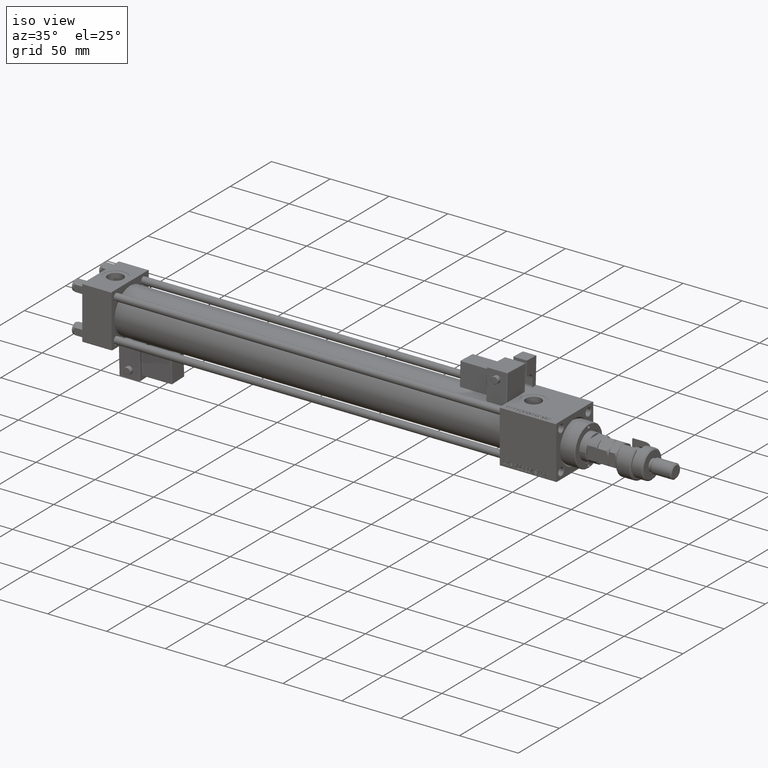
[diagram: clean part render]
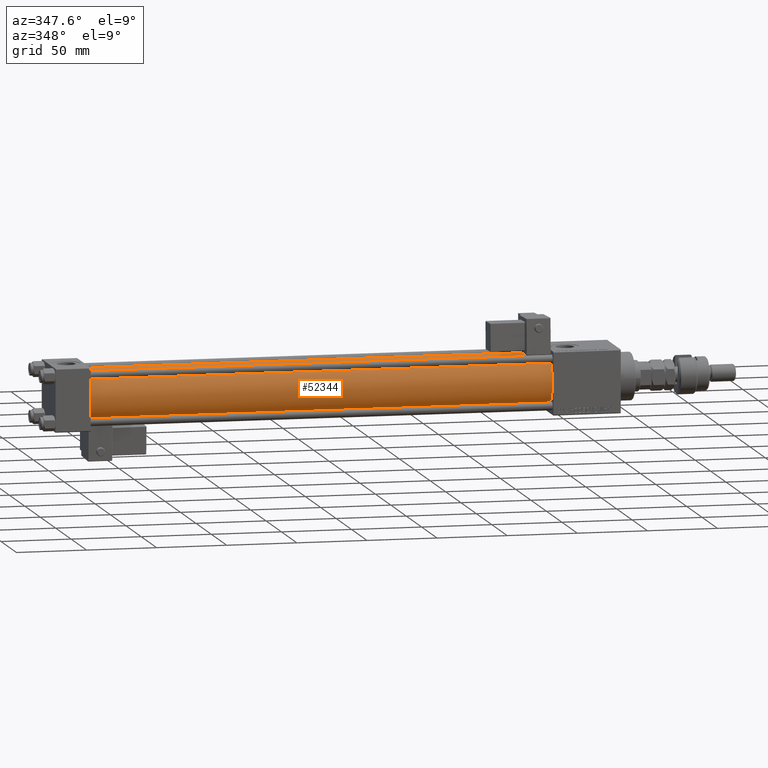
[diagram: tour spotlight — one face highlighted and labeled with its STEP entity id]
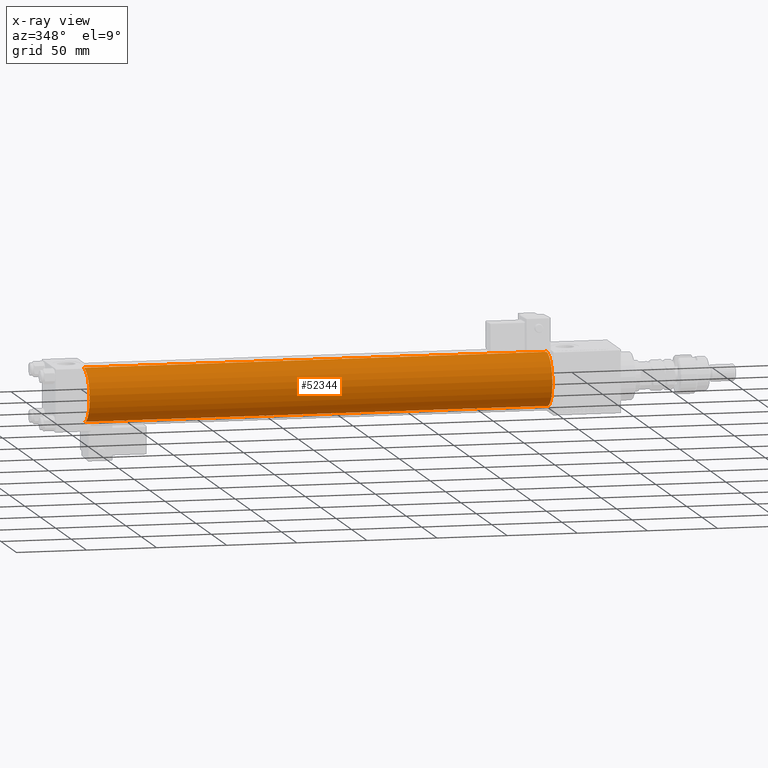
[diagram: x-ray of the same camera — body ghosted, this tour face saturated]
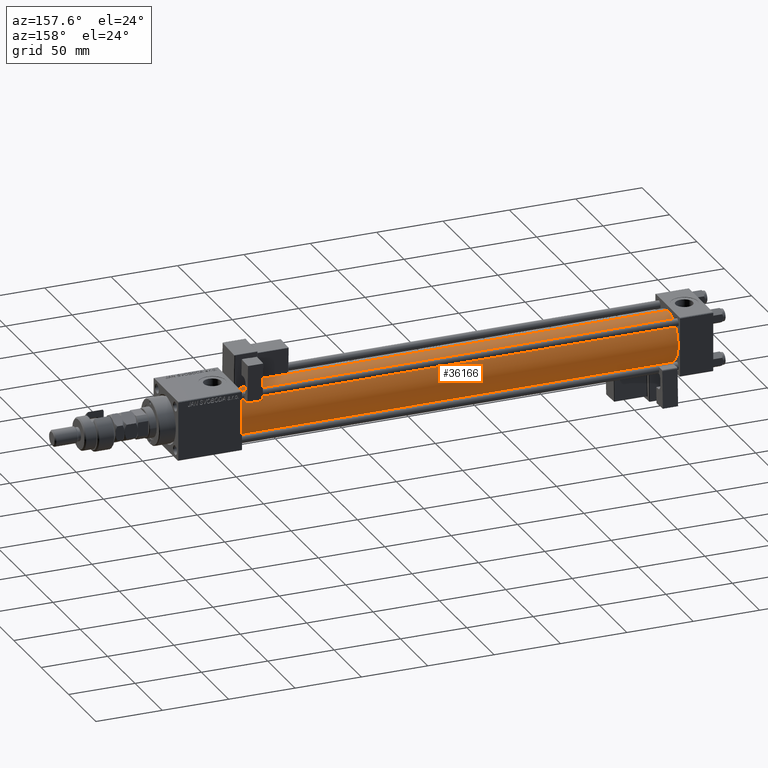
[diagram: tour spotlight — one face highlighted and labeled with its STEP entity id]
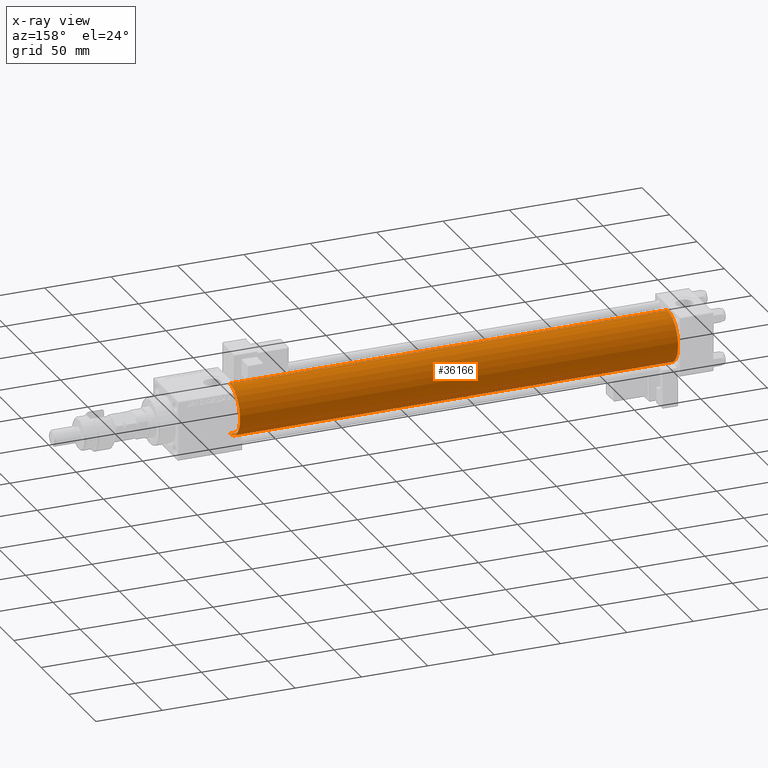
[diagram: x-ray of the same camera — body ghosted, this tour face saturated]
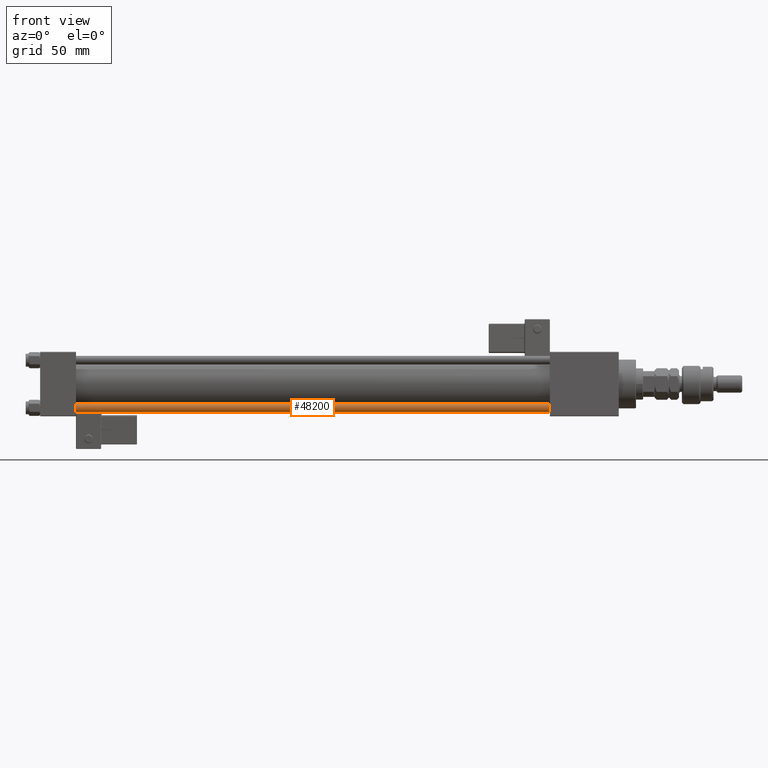
[diagram: tour spotlight — one face highlighted and labeled with its STEP entity id]
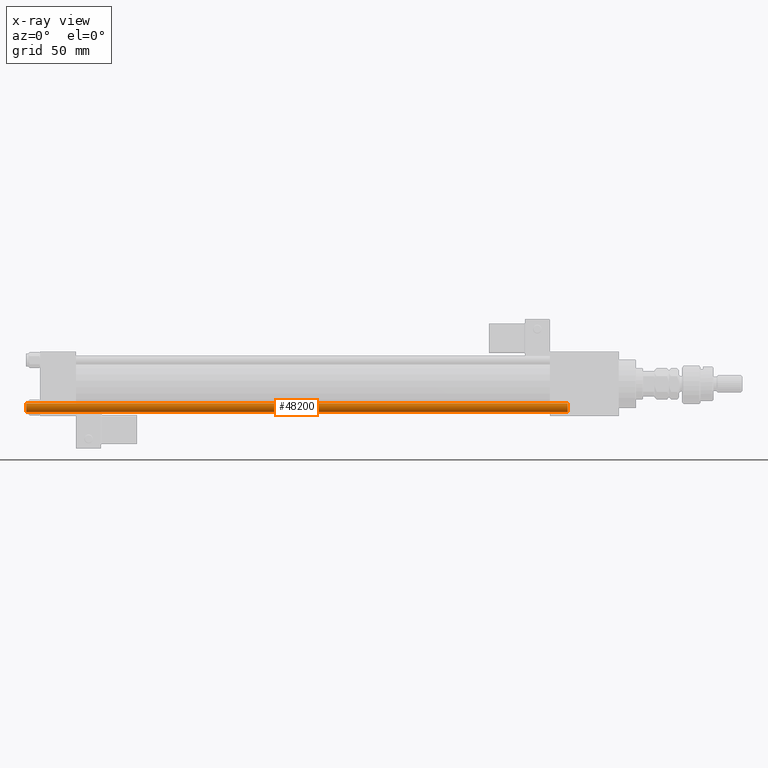
[diagram: x-ray of the same camera — body ghosted, this tour face saturated]
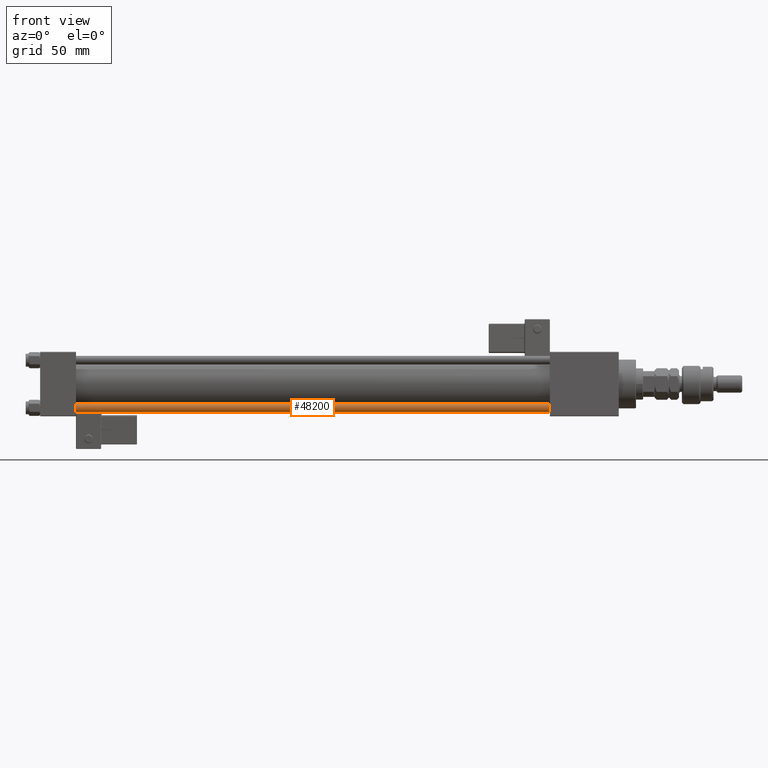
[diagram: tour spotlight — one face highlighted and labeled with its STEP entity id]
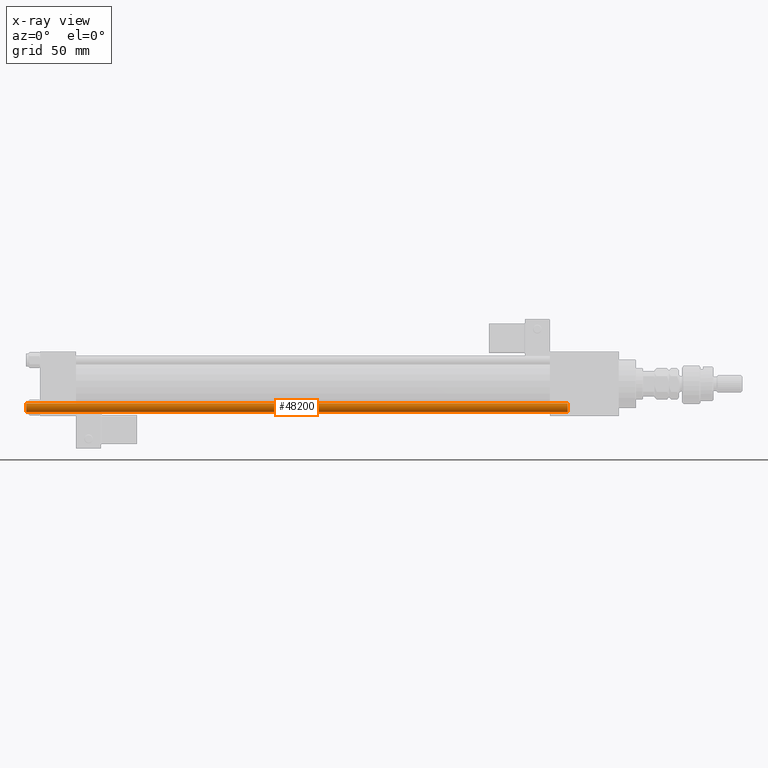
[diagram: x-ray of the same camera — body ghosted, this tour face saturated]
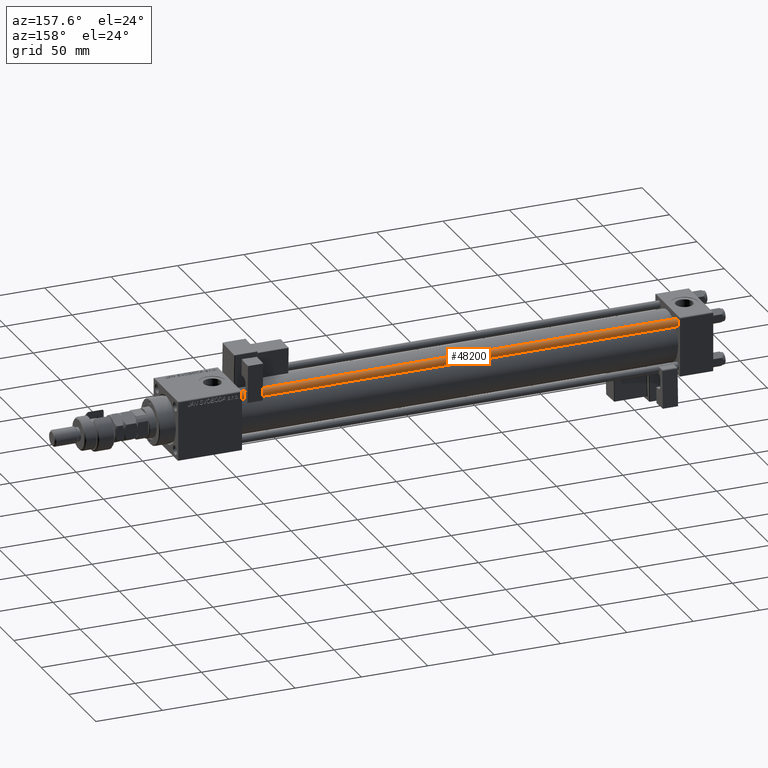
[diagram: tour spotlight — one face highlighted and labeled with its STEP entity id]
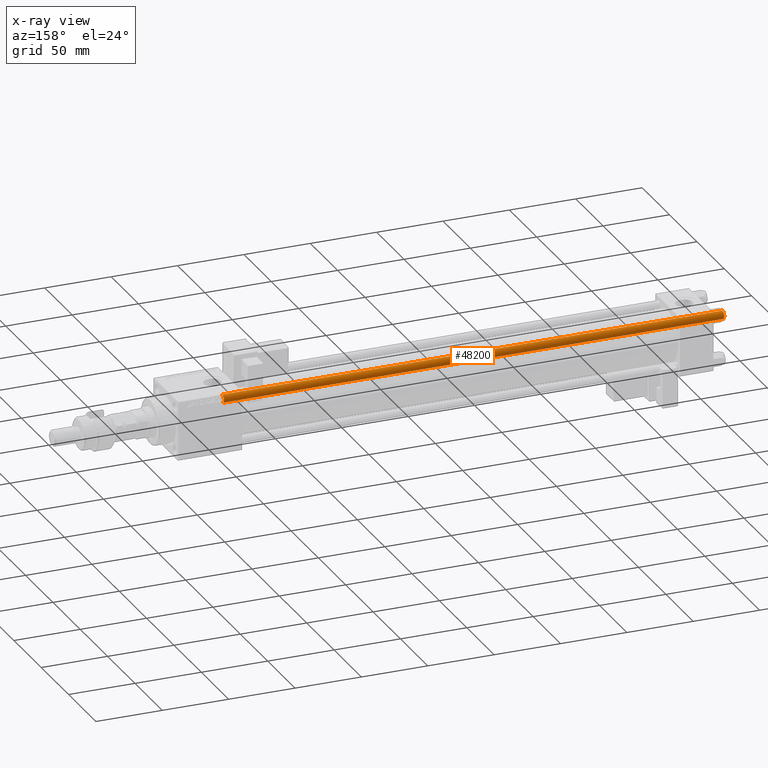
[diagram: x-ray of the same camera — body ghosted, this tour face saturated]
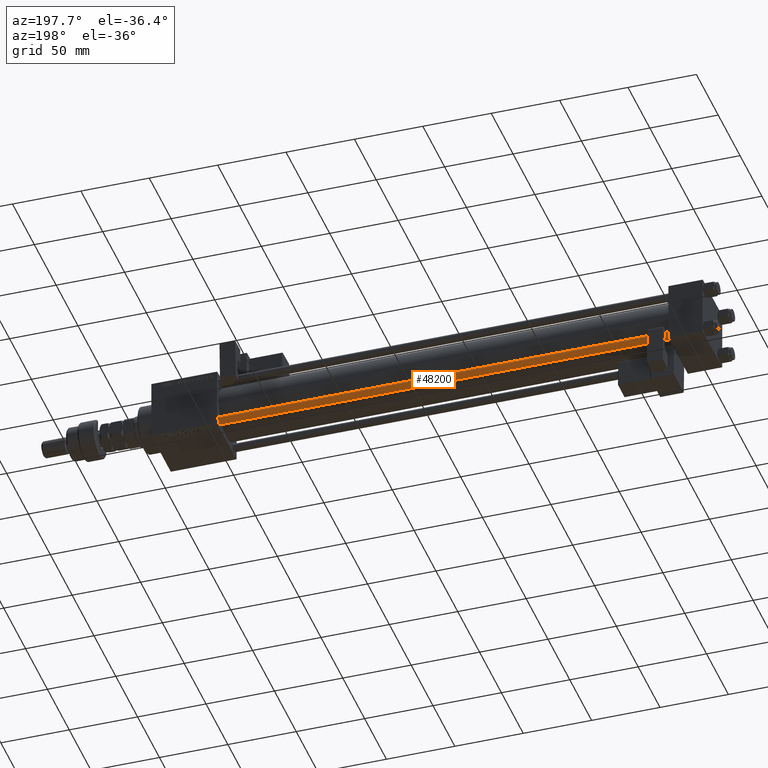
[diagram: tour spotlight — one face highlighted and labeled with its STEP entity id]
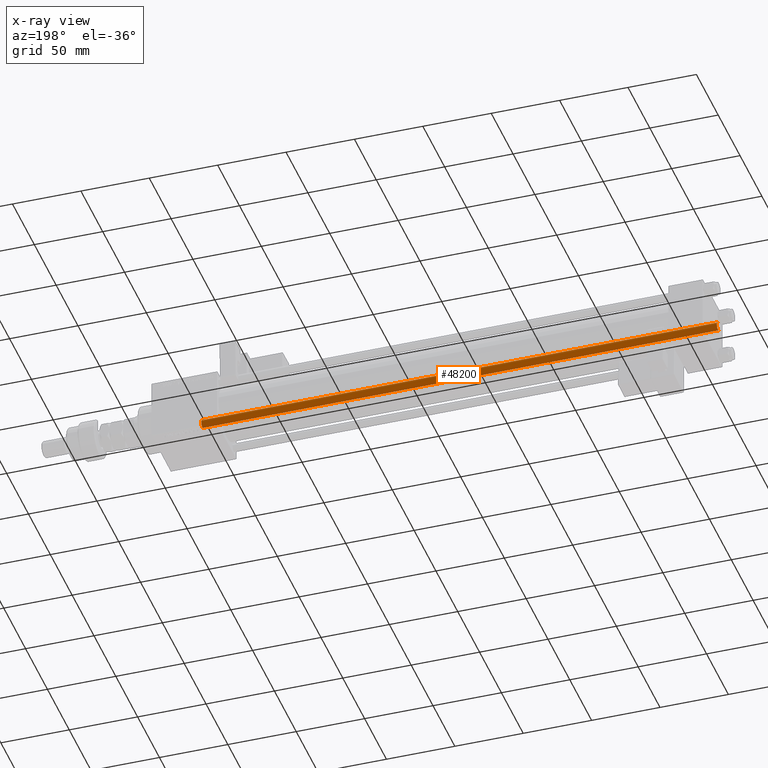
[diagram: x-ray of the same camera — body ghosted, this tour face saturated]
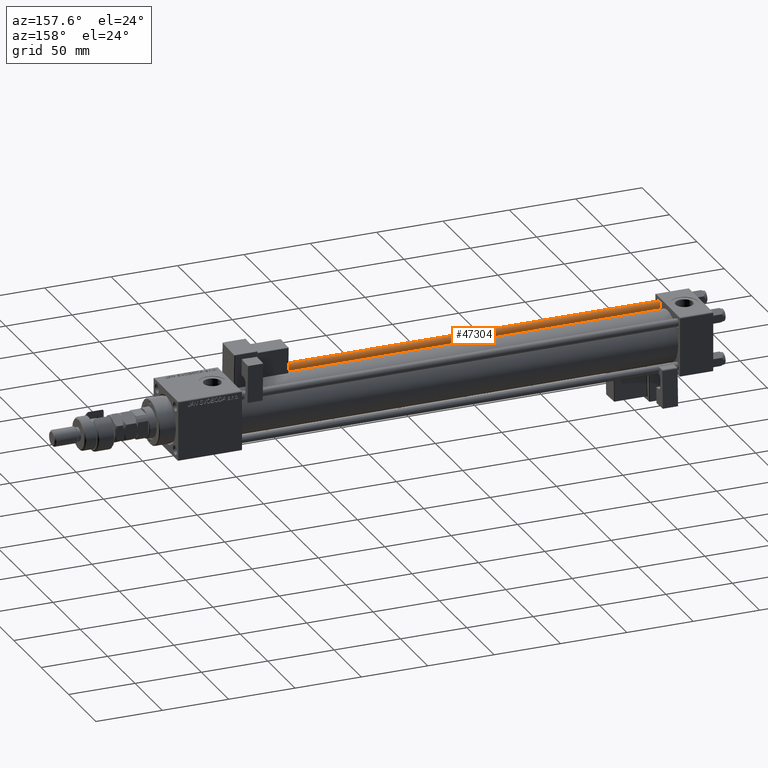
[diagram: tour spotlight — one face highlighted and labeled with its STEP entity id]
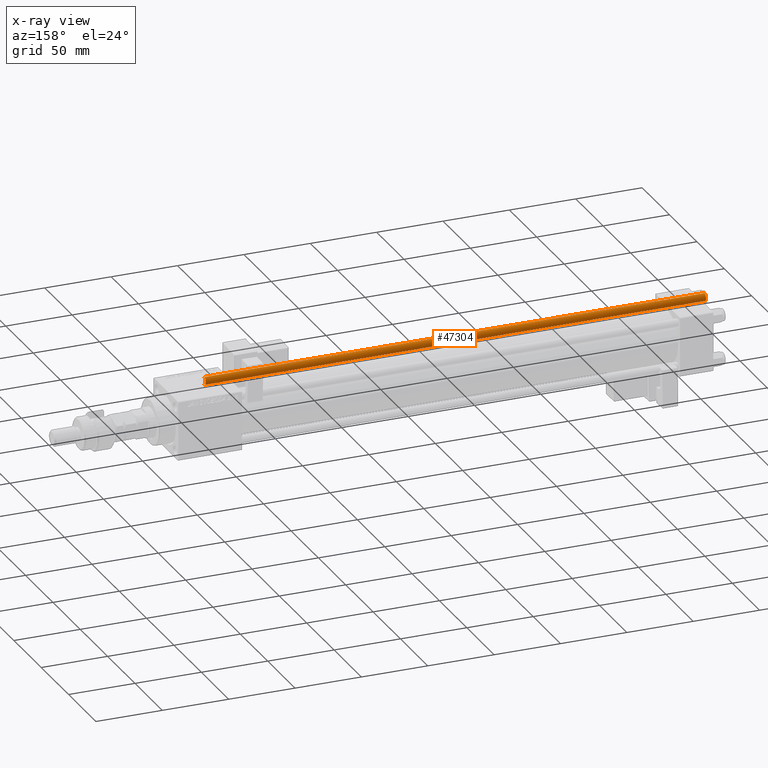
[diagram: x-ray of the same camera — body ghosted, this tour face saturated]
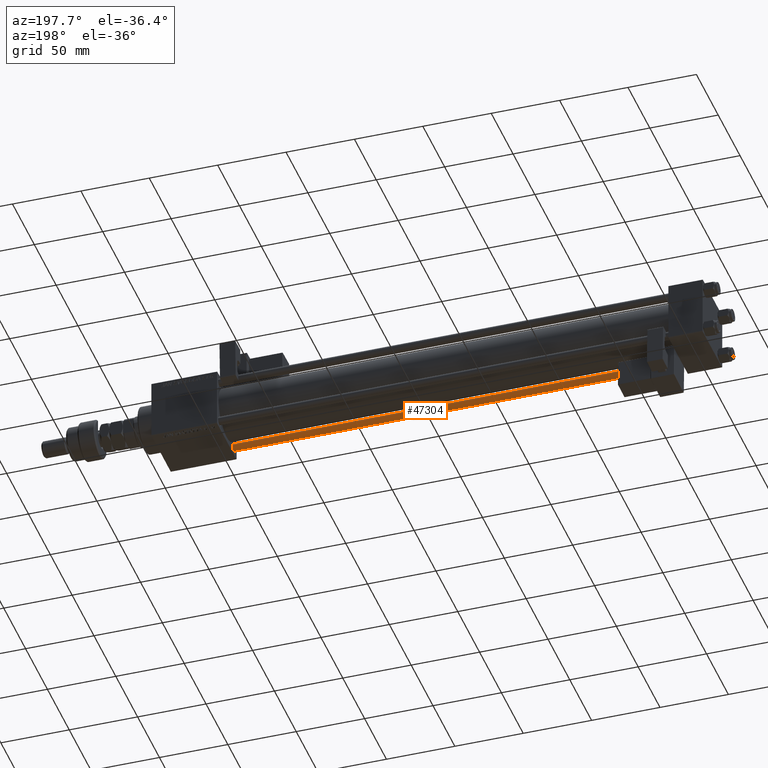
[diagram: tour spotlight — one face highlighted and labeled with its STEP entity id]
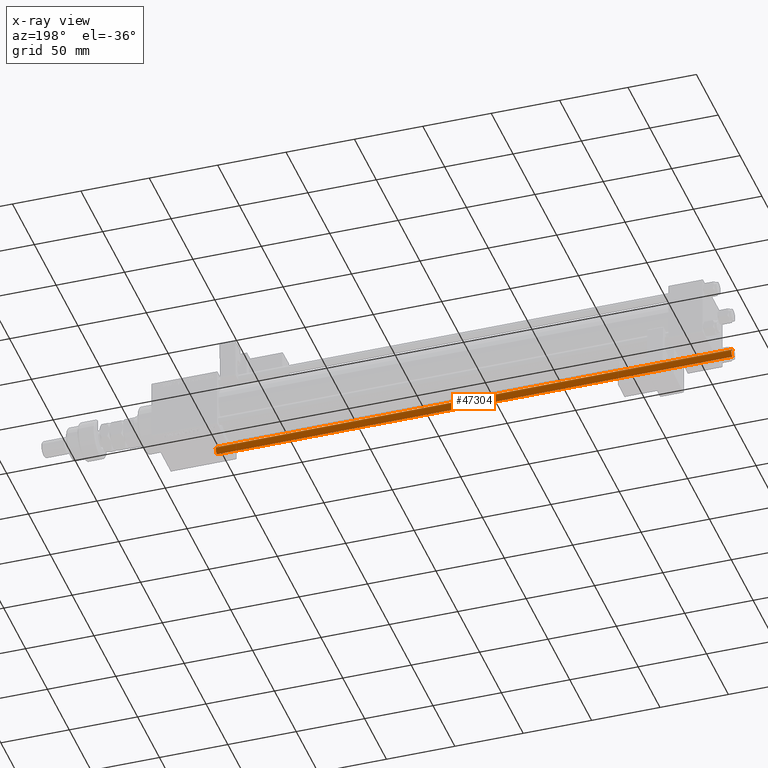
[diagram: x-ray of the same camera — body ghosted, this tour face saturated]
A machine part: a face-by-face anatomy tour. The part has 1396 B-rep faces; the first image is the clean iso view, then the 8 largest visible faces are spotlighted one at a time (largest first), each with its STEP entity span.

Face 1 — auxiliary view, entity #52344. An x-ray twin of the same camera follows (body ghosted, this face saturated) — the face is partly hidden behind the body. In plain terms, the highlighted cylindrical surface (edge-blend (fillet) strip) has radius 19 mm, axis along (-1, -0, -0).
Definition (entity closure, byte-faithful):
#1438 = ORIENTED_EDGE ( 'NONE', *, *, #47007, .F. ) ;
#1623 = AXIS2_PLACEMENT_3D ( 'NONE', #31523, #27328, #40192 ) ;
#3683 = EDGE_CURVE ( 'NONE', #52791, #13215, #38300, .T. ) ;
#5222 = DIRECTION ( 'NONE',  ( 1.000000000000000000, 0.000000000000000000, 0.000000000000000000 ) ) ;
#5941 = DIRECTION ( 'NONE',  ( 0.000000000000000000, 0.000000000000000000, 1.000000000000000000 ) ) ;
#7460 = LINE ( 'NONE', #32707, #37880 ) ;
#9596 = VERTEX_POINT ( 'NONE', #36189 ) ;
#9779 = CARTESIAN_POINT ( 'NONE',  ( 25.00000000000002132, -2.752562955852396712E-16, -19.00000000000000000 ) ) ;
#9871 = FACE_OUTER_BOUND ( 'NONE', #32475, .T. ) ;
#13215 = VERTEX_POINT ( 'NONE', #9779 ) ;
#13804 = CYLINDRICAL_SURFACE ( 'NONE', #20220, 19.00000000000000000 ) ;
#16897 = EDGE_CURVE ( 'NONE', #43194, #9596, #39768, .T. ) ;
#17265 = CARTESIAN_POINT ( 'NONE',  ( 355.0000000000000568, -2.752562955852396712E-16, -19.00000000000000000 ) ) ;
#19632 = CARTESIAN_POINT ( 'NONE',  ( 355.0000000000000568, -2.602085213965210642E-15, 19.00000000000000000 ) ) ;
#19795 = DIRECTION ( 'NONE',  ( -1.000000000000000000, -0.000000000000000000, -0.000000000000000000 ) ) ;
#20220 = AXIS2_PLACEMENT_3D ( 'NONE', #31174, #52192, #5941 ) ;
#21753 = LINE ( 'NONE', #17265, #51487 ) ;
#26532 = CARTESIAN_POINT ( 'NONE',  ( 355.0000000000000568, -2.602085213965210642E-15, 0.000000000000000000 ) ) ;
#27328 = DIRECTION ( 'NONE',  ( 1.000000000000000000, -0.000000000000000000, 0.000000000000000000 ) ) ;
#30184 = DIRECTION ( 'NONE',  ( -1.000000000000000000, -0.000000000000000000, -0.000000000000000000 ) ) ;
#31174 = CARTESIAN_POINT ( 'NONE',  ( 355.0000000000000568, -2.602085213965210642E-15, 0.000000000000000000 ) ) ;
#31523 = CARTESIAN_POINT ( 'NONE',  ( 25.00000000000002132, -2.602085213965210642E-15, 0.000000000000000000 ) ) ;
#31707 = ORIENTED_EDGE ( 'NONE', *, *, #41938, .T. ) ;
#32475 = EDGE_LOOP ( 'NONE', ( #1438, #33284, #31707, #34573 ) ) ;
#32707 = CARTESIAN_POINT ( 'NONE',  ( 355.0000000000000568, -2.602085213965210642E-15, 19.00000000000000000 ) ) ;
#33284 = ORIENTED_EDGE ( 'NONE', *, *, #16897, .F. ) ;
#34573 = ORIENTED_EDGE ( 'NONE', *, *, #3683, .T. ) ;
#35755 = DIRECTION ( 'NONE',  ( 0.000000000000000000, 0.000000000000000000, -1.000000000000000000 ) ) ;
#36189 = CARTESIAN_POINT ( 'NONE',  ( 355.0000000000000568, -2.752562955852396712E-16, -19.00000000000000000 ) ) ;
#37880 = VECTOR ( 'NONE', #19795, 1000.000000000000000 ) ;
#38300 = CIRCLE ( 'NONE', #1623, 19.00000000000000000 ) ;
#39768 = CIRCLE ( 'NONE', #50453, 19.00000000000000000 ) ;
#40192 = DIRECTION ( 'NONE',  ( 0.000000000000000000, 0.000000000000000000, 1.000000000000000000 ) ) ;
#41938 = EDGE_CURVE ( 'NONE', #43194, #52791, #7460, .T. ) ;
#43076 = CARTESIAN_POINT ( 'NONE',  ( 25.00000000000002132, -2.602085213965210642E-15, 19.00000000000000000 ) ) ;
#43194 = VERTEX_POINT ( 'NONE', #19632 ) ;
#47007 = EDGE_CURVE ( 'NONE', #9596, #13215, #21753, .T. ) ;
#50453 = AXIS2_PLACEMENT_3D ( 'NONE', #26532, #5222, #35755 ) ;
#51487 = VECTOR ( 'NONE', #30184, 1000.000000000000000 ) ;
#52192 = DIRECTION ( 'NONE',  ( -1.000000000000000000, -0.000000000000000000, -0.000000000000000000 ) ) ;
#52344 = ADVANCED_FACE ( 'NONE', ( #9871 ), #13804, .T. ) ;
#52791 = VERTEX_POINT ( 'NONE', #43076 ) ;

Face 2 — auxiliary view, entity #36166. An x-ray twin of the same camera follows (body ghosted, this face saturated) — the face is partly hidden behind the body. In plain terms, the highlighted cylindrical surface (edge-blend (fillet) strip) has radius 19 mm, axis along (-1, -0, -0).
Definition (entity closure, byte-faithful):
#1816 = AXIS2_PLACEMENT_3D ( 'NONE', #9630, #35138, #26171 ) ;
#3997 = AXIS2_PLACEMENT_3D ( 'NONE', #47693, #27526, #40114 ) ;
#6753 = DIRECTION ( 'NONE',  ( 1.000000000000000000, 0.000000000000000000, 0.000000000000000000 ) ) ;
#7460 = LINE ( 'NONE', #32707, #37880 ) ;
#9596 = VERTEX_POINT ( 'NONE', #36189 ) ;
#9630 = CARTESIAN_POINT ( 'NONE',  ( 355.0000000000000568, -2.602085213965210642E-15, 0.000000000000000000 ) ) ;
#9779 = CARTESIAN_POINT ( 'NONE',  ( 25.00000000000002132, -2.752562955852396712E-16, -19.00000000000000000 ) ) ;
#11980 = ORIENTED_EDGE ( 'NONE', *, *, #41938, .F. ) ;
#12868 = ORIENTED_EDGE ( 'NONE', *, *, #42365, .F. ) ;
#13215 = VERTEX_POINT ( 'NONE', #9779 ) ;
#13709 = CIRCLE ( 'NONE', #23578, 19.00000000000000000 ) ;
#17265 = CARTESIAN_POINT ( 'NONE',  ( 355.0000000000000568, -2.752562955852396712E-16, -19.00000000000000000 ) ) ;
#19632 = CARTESIAN_POINT ( 'NONE',  ( 355.0000000000000568, -2.602085213965210642E-15, 19.00000000000000000 ) ) ;
#19795 = DIRECTION ( 'NONE',  ( -1.000000000000000000, -0.000000000000000000, -0.000000000000000000 ) ) ;
#21753 = LINE ( 'NONE', #17265, #51487 ) ;
#23578 = AXIS2_PLACEMENT_3D ( 'NONE', #36194, #6753, #53287 ) ;
#26171 = DIRECTION ( 'NONE',  ( 0.000000000000000000, 0.000000000000000000, 1.000000000000000000 ) ) ;
#27526 = DIRECTION ( 'NONE',  ( 1.000000000000000000, -0.000000000000000000, 0.000000000000000000 ) ) ;
#30184 = DIRECTION ( 'NONE',  ( -1.000000000000000000, -0.000000000000000000, -0.000000000000000000 ) ) ;
#32707 = CARTESIAN_POINT ( 'NONE',  ( 355.0000000000000568, -2.602085213965210642E-15, 19.00000000000000000 ) ) ;
#33530 = CIRCLE ( 'NONE', #3997, 19.00000000000000000 ) ;
#35138 = DIRECTION ( 'NONE',  ( -1.000000000000000000, -0.000000000000000000, -0.000000000000000000 ) ) ;
#36166 = ADVANCED_FACE ( 'NONE', ( #47999 ), #51648, .T. ) ;
#36189 = CARTESIAN_POINT ( 'NONE',  ( 355.0000000000000568, -2.752562955852396712E-16, -19.00000000000000000 ) ) ;
#36194 = CARTESIAN_POINT ( 'NONE',  ( 355.0000000000000568, -2.602085213965210642E-15, 0.000000000000000000 ) ) ;
#37880 = VECTOR ( 'NONE', #19795, 1000.000000000000000 ) ;
#39506 = ORIENTED_EDGE ( 'NONE', *, *, #49151, .T. ) ;
#40114 = DIRECTION ( 'NONE',  ( 0.000000000000000000, 0.000000000000000000, 1.000000000000000000 ) ) ;
#41739 = ORIENTED_EDGE ( 'NONE', *, *, #47007, .T. ) ;
#41938 = EDGE_CURVE ( 'NONE', #43194, #52791, #7460, .T. ) ;
#42365 = EDGE_CURVE ( 'NONE', #9596, #43194, #13709, .T. ) ;
#43051 = EDGE_LOOP ( 'NONE', ( #12868, #41739, #39506, #11980 ) ) ;
#43076 = CARTESIAN_POINT ( 'NONE',  ( 25.00000000000002132, -2.602085213965210642E-15, 19.00000000000000000 ) ) ;
#43194 = VERTEX_POINT ( 'NONE', #19632 ) ;
#47007 = EDGE_CURVE ( 'NONE', #9596, #13215, #21753, .T. ) ;
#47693 = CARTESIAN_POINT ( 'NONE',  ( 25.00000000000002132, -2.602085213965210642E-15, 0.000000000000000000 ) ) ;
#47999 = FACE_OUTER_BOUND ( 'NONE', #43051, .T. ) ;
#49151 = EDGE_CURVE ( 'NONE', #13215, #52791, #33530, .T. ) ;
#51487 = VECTOR ( 'NONE', #30184, 1000.000000000000000 ) ;
#51648 = CYLINDRICAL_SURFACE ( 'NONE', #1816, 19.00000000000000000 ) ;
#52791 = VERTEX_POINT ( 'NONE', #43076 ) ;
#53287 = DIRECTION ( 'NONE',  ( 0.000000000000000000, 0.000000000000000000, -1.000000000000000000 ) ) ;

Face 3 — front view, entity #48200. An x-ray twin of the same camera follows (body ghosted, this face saturated) — the face is partly hidden behind the body. In plain terms, the highlighted cylindrical surface (edge-blend (fillet) strip) has radius 3 mm, axis along (1, 0, -0).
Definition (entity closure, byte-faithful):
#997 = CARTESIAN_POINT ( 'NONE',  ( -3.000000000000000444, 0.000000000000000000, 378.0000000000000000 ) ) ;
#3929 = DIRECTION ( 'NONE',  ( -0.000000000000000000, -0.000000000000000000, -1.000000000000000000 ) ) ;
#3992 = ORIENTED_EDGE ( 'NONE', *, *, #49837, .T. ) ;
#4262 = VERTEX_POINT ( 'NONE', #44256 ) ;
#5092 = VERTEX_POINT ( 'NONE', #33854 ) ;
#5304 = CYLINDRICAL_SURFACE ( 'NONE', #43364, 3.000000000000000444 ) ;
#7609 = DIRECTION ( 'NONE',  ( 1.000000000000000000, 0.000000000000000000, 0.000000000000000000 ) ) ;
#13332 = LINE ( 'NONE', #997, #35487 ) ;
#14117 = EDGE_LOOP ( 'NONE', ( #3992, #42837, #25395, #27932 ) ) ;
#16194 = VECTOR ( 'NONE', #3929, 1000.000000000000000 ) ;
#17774 = CARTESIAN_POINT ( 'NONE',  ( 0.000000000000000000, 0.000000000000000000, 377.5000000000000000 ) ) ;
#18180 = CARTESIAN_POINT ( 'NONE',  ( 0.000000000000000000, 0.000000000000000000, 378.0000000000000000 ) ) ;
#18464 = DIRECTION ( 'NONE',  ( -0.000000000000000000, -0.000000000000000000, -1.000000000000000000 ) ) ;
#19912 = CARTESIAN_POINT ( 'NONE',  ( 3.000000000000000444, 3.673940397442060361E-16, 378.0000000000000000 ) ) ;
#23273 = CARTESIAN_POINT ( 'NONE',  ( 3.000000000000000444, 3.673940397442060361E-16, 377.5000000000000000 ) ) ;
#24409 = LINE ( 'NONE', #19912, #16194 ) ;
#24925 = EDGE_CURVE ( 'NONE', #25485, #5092, #13332, .T. ) ;
#25395 = ORIENTED_EDGE ( 'NONE', *, *, #37142, .T. ) ;
#25485 = VERTEX_POINT ( 'NONE', #48553 ) ;
#27932 = ORIENTED_EDGE ( 'NONE', *, *, #24925, .F. ) ;
#28384 = DIRECTION ( 'NONE',  ( -0.000000000000000000, -0.000000000000000000, 1.000000000000000000 ) ) ;
#29624 = CIRCLE ( 'NONE', #33228, 3.000000000000000444 ) ;
#30008 = CIRCLE ( 'NONE', #40738, 3.000000000000000444 ) ;
#33228 = AXIS2_PLACEMENT_3D ( 'NONE', #47036, #28384, #7609 ) ;
#33854 = CARTESIAN_POINT ( 'NONE',  ( -3.000000000000000444, 0.000000000000000000, 0.5000000000000004441 ) ) ;
#34496 = EDGE_CURVE ( 'NONE', #55165, #4262, #24409, .T. ) ;
#34896 = DIRECTION ( 'NONE',  ( 0.000000000000000000, 0.000000000000000000, -1.000000000000000000 ) ) ;
#35487 = VECTOR ( 'NONE', #39388, 1000.000000000000000 ) ;
#36389 = DIRECTION ( 'NONE',  ( -1.000000000000000000, 0.000000000000000000, 0.000000000000000000 ) ) ;
#37142 = EDGE_CURVE ( 'NONE', #4262, #5092, #29624, .T. ) ;
#39388 = DIRECTION ( 'NONE',  ( -0.000000000000000000, -0.000000000000000000, -1.000000000000000000 ) ) ;
#40738 = AXIS2_PLACEMENT_3D ( 'NONE', #17774, #34896, #51985 ) ;
#42837 = ORIENTED_EDGE ( 'NONE', *, *, #34496, .T. ) ;
#43364 = AXIS2_PLACEMENT_3D ( 'NONE', #18180, #18464, #36389 ) ;
#43686 = FACE_OUTER_BOUND ( 'NONE', #14117, .T. ) ;
#44256 = CARTESIAN_POINT ( 'NONE',  ( 3.000000000000000444, 3.673940397442060361E-16, 0.5000000000000004441 ) ) ;
#47036 = CARTESIAN_POINT ( 'NONE',  ( 0.000000000000000000, 0.000000000000000000, 0.5000000000000004441 ) ) ;
#48200 = ADVANCED_FACE ( 'NONE', ( #43686 ), #5304, .T. ) ;
#48553 = CARTESIAN_POINT ( 'NONE',  ( -3.000000000000000444, 0.000000000000000000, 377.5000000000000000 ) ) ;
#49837 = EDGE_CURVE ( 'NONE', #25485, #55165, #30008, .T. ) ;
#51985 = DIRECTION ( 'NONE',  ( 1.000000000000000000, 0.000000000000000000, 0.000000000000000000 ) ) ;
#55165 = VERTEX_POINT ( 'NONE', #23273 ) ;

Face 4 — front view, entity #48200. An x-ray twin of the same camera follows (body ghosted, this face saturated) — the face is partly hidden behind the body. In plain terms, the highlighted cylindrical surface (edge-blend (fillet) strip) has radius 3 mm, axis along (-1, -0, -0).
Definition (entity closure, byte-faithful):
#997 = CARTESIAN_POINT ( 'NONE',  ( -3.000000000000000444, 0.000000000000000000, 378.0000000000000000 ) ) ;
#3929 = DIRECTION ( 'NONE',  ( -0.000000000000000000, -0.000000000000000000, -1.000000000000000000 ) ) ;
#3992 = ORIENTED_EDGE ( 'NONE', *, *, #49837, .T. ) ;
#4262 = VERTEX_POINT ( 'NONE', #44256 ) ;
#5092 = VERTEX_POINT ( 'NONE', #33854 ) ;
#5304 = CYLINDRICAL_SURFACE ( 'NONE', #43364, 3.000000000000000444 ) ;
#7609 = DIRECTION ( 'NONE',  ( 1.000000000000000000, 0.000000000000000000, 0.000000000000000000 ) ) ;
#13332 = LINE ( 'NONE', #997, #35487 ) ;
#14117 = EDGE_LOOP ( 'NONE', ( #3992, #42837, #25395, #27932 ) ) ;
#16194 = VECTOR ( 'NONE', #3929, 1000.000000000000000 ) ;
#17774 = CARTESIAN_POINT ( 'NONE',  ( 0.000000000000000000, 0.000000000000000000, 377.5000000000000000 ) ) ;
#18180 = CARTESIAN_POINT ( 'NONE',  ( 0.000000000000000000, 0.000000000000000000, 378.0000000000000000 ) ) ;
#18464 = DIRECTION ( 'NONE',  ( -0.000000000000000000, -0.000000000000000000, -1.000000000000000000 ) ) ;
#19912 = CARTESIAN_POINT ( 'NONE',  ( 3.000000000000000444, 3.673940397442060361E-16, 378.0000000000000000 ) ) ;
#23273 = CARTESIAN_POINT ( 'NONE',  ( 3.000000000000000444, 3.673940397442060361E-16, 377.5000000000000000 ) ) ;
#24409 = LINE ( 'NONE', #19912, #16194 ) ;
#24925 = EDGE_CURVE ( 'NONE', #25485, #5092, #13332, .T. ) ;
#25395 = ORIENTED_EDGE ( 'NONE', *, *, #37142, .T. ) ;
#25485 = VERTEX_POINT ( 'NONE', #48553 ) ;
#27932 = ORIENTED_EDGE ( 'NONE', *, *, #24925, .F. ) ;
#28384 = DIRECTION ( 'NONE',  ( -0.000000000000000000, -0.000000000000000000, 1.000000000000000000 ) ) ;
#29624 = CIRCLE ( 'NONE', #33228, 3.000000000000000444 ) ;
#30008 = CIRCLE ( 'NONE', #40738, 3.000000000000000444 ) ;
#33228 = AXIS2_PLACEMENT_3D ( 'NONE', #47036, #28384, #7609 ) ;
#33854 = CARTESIAN_POINT ( 'NONE',  ( -3.000000000000000444, 0.000000000000000000, 0.5000000000000004441 ) ) ;
#34496 = EDGE_CURVE ( 'NONE', #55165, #4262, #24409, .T. ) ;
#34896 = DIRECTION ( 'NONE',  ( 0.000000000000000000, 0.000000000000000000, -1.000000000000000000 ) ) ;
#35487 = VECTOR ( 'NONE', #39388, 1000.000000000000000 ) ;
#36389 = DIRECTION ( 'NONE',  ( -1.000000000000000000, 0.000000000000000000, 0.000000000000000000 ) ) ;
#37142 = EDGE_CURVE ( 'NONE', #4262, #5092, #29624, .T. ) ;
#39388 = DIRECTION ( 'NONE',  ( -0.000000000000000000, -0.000000000000000000, -1.000000000000000000 ) ) ;
#40738 = AXIS2_PLACEMENT_3D ( 'NONE', #17774, #34896, #51985 ) ;
#42837 = ORIENTED_EDGE ( 'NONE', *, *, #34496, .T. ) ;
#43364 = AXIS2_PLACEMENT_3D ( 'NONE', #18180, #18464, #36389 ) ;
#43686 = FACE_OUTER_BOUND ( 'NONE', #14117, .T. ) ;
#44256 = CARTESIAN_POINT ( 'NONE',  ( 3.000000000000000444, 3.673940397442060361E-16, 0.5000000000000004441 ) ) ;
#47036 = CARTESIAN_POINT ( 'NONE',  ( 0.000000000000000000, 0.000000000000000000, 0.5000000000000004441 ) ) ;
#48200 = ADVANCED_FACE ( 'NONE', ( #43686 ), #5304, .T. ) ;
#48553 = CARTESIAN_POINT ( 'NONE',  ( -3.000000000000000444, 0.000000000000000000, 377.5000000000000000 ) ) ;
#49837 = EDGE_CURVE ( 'NONE', #25485, #55165, #30008, .T. ) ;
#51985 = DIRECTION ( 'NONE',  ( 1.000000000000000000, 0.000000000000000000, 0.000000000000000000 ) ) ;
#55165 = VERTEX_POINT ( 'NONE', #23273 ) ;

Face 5 — auxiliary view, entity #48200. An x-ray twin of the same camera follows (body ghosted, this face saturated) — the face is partly hidden behind the body. In plain terms, the highlighted cylindrical surface (edge-blend (fillet) strip) has radius 3 mm, axis along (-1, 0, 0).
Definition (entity closure, byte-faithful):
#997 = CARTESIAN_POINT ( 'NONE',  ( -3.000000000000000444, 0.000000000000000000, 378.0000000000000000 ) ) ;
#3929 = DIRECTION ( 'NONE',  ( -0.000000000000000000, -0.000000000000000000, -1.000000000000000000 ) ) ;
#3992 = ORIENTED_EDGE ( 'NONE', *, *, #49837, .T. ) ;
#4262 = VERTEX_POINT ( 'NONE', #44256 ) ;
#5092 = VERTEX_POINT ( 'NONE', #33854 ) ;
#5304 = CYLINDRICAL_SURFACE ( 'NONE', #43364, 3.000000000000000444 ) ;
#7609 = DIRECTION ( 'NONE',  ( 1.000000000000000000, 0.000000000000000000, 0.000000000000000000 ) ) ;
#13332 = LINE ( 'NONE', #997, #35487 ) ;
#14117 = EDGE_LOOP ( 'NONE', ( #3992, #42837, #25395, #27932 ) ) ;
#16194 = VECTOR ( 'NONE', #3929, 1000.000000000000000 ) ;
#17774 = CARTESIAN_POINT ( 'NONE',  ( 0.000000000000000000, 0.000000000000000000, 377.5000000000000000 ) ) ;
#18180 = CARTESIAN_POINT ( 'NONE',  ( 0.000000000000000000, 0.000000000000000000, 378.0000000000000000 ) ) ;
#18464 = DIRECTION ( 'NONE',  ( -0.000000000000000000, -0.000000000000000000, -1.000000000000000000 ) ) ;
#19912 = CARTESIAN_POINT ( 'NONE',  ( 3.000000000000000444, 3.673940397442060361E-16, 378.0000000000000000 ) ) ;
#23273 = CARTESIAN_POINT ( 'NONE',  ( 3.000000000000000444, 3.673940397442060361E-16, 377.5000000000000000 ) ) ;
#24409 = LINE ( 'NONE', #19912, #16194 ) ;
#24925 = EDGE_CURVE ( 'NONE', #25485, #5092, #13332, .T. ) ;
#25395 = ORIENTED_EDGE ( 'NONE', *, *, #37142, .T. ) ;
#25485 = VERTEX_POINT ( 'NONE', #48553 ) ;
#27932 = ORIENTED_EDGE ( 'NONE', *, *, #24925, .F. ) ;
#28384 = DIRECTION ( 'NONE',  ( -0.000000000000000000, -0.000000000000000000, 1.000000000000000000 ) ) ;
#29624 = CIRCLE ( 'NONE', #33228, 3.000000000000000444 ) ;
#30008 = CIRCLE ( 'NONE', #40738, 3.000000000000000444 ) ;
#33228 = AXIS2_PLACEMENT_3D ( 'NONE', #47036, #28384, #7609 ) ;
#33854 = CARTESIAN_POINT ( 'NONE',  ( -3.000000000000000444, 0.000000000000000000, 0.5000000000000004441 ) ) ;
#34496 = EDGE_CURVE ( 'NONE', #55165, #4262, #24409, .T. ) ;
#34896 = DIRECTION ( 'NONE',  ( 0.000000000000000000, 0.000000000000000000, -1.000000000000000000 ) ) ;
#35487 = VECTOR ( 'NONE', #39388, 1000.000000000000000 ) ;
#36389 = DIRECTION ( 'NONE',  ( -1.000000000000000000, 0.000000000000000000, 0.000000000000000000 ) ) ;
#37142 = EDGE_CURVE ( 'NONE', #4262, #5092, #29624, .T. ) ;
#39388 = DIRECTION ( 'NONE',  ( -0.000000000000000000, -0.000000000000000000, -1.000000000000000000 ) ) ;
#40738 = AXIS2_PLACEMENT_3D ( 'NONE', #17774, #34896, #51985 ) ;
#42837 = ORIENTED_EDGE ( 'NONE', *, *, #34496, .T. ) ;
#43364 = AXIS2_PLACEMENT_3D ( 'NONE', #18180, #18464, #36389 ) ;
#43686 = FACE_OUTER_BOUND ( 'NONE', #14117, .T. ) ;
#44256 = CARTESIAN_POINT ( 'NONE',  ( 3.000000000000000444, 3.673940397442060361E-16, 0.5000000000000004441 ) ) ;
#47036 = CARTESIAN_POINT ( 'NONE',  ( 0.000000000000000000, 0.000000000000000000, 0.5000000000000004441 ) ) ;
#48200 = ADVANCED_FACE ( 'NONE', ( #43686 ), #5304, .T. ) ;
#48553 = CARTESIAN_POINT ( 'NONE',  ( -3.000000000000000444, 0.000000000000000000, 377.5000000000000000 ) ) ;
#49837 = EDGE_CURVE ( 'NONE', #25485, #55165, #30008, .T. ) ;
#51985 = DIRECTION ( 'NONE',  ( 1.000000000000000000, 0.000000000000000000, 0.000000000000000000 ) ) ;
#55165 = VERTEX_POINT ( 'NONE', #23273 ) ;

Face 6 — auxiliary view, entity #48200. An x-ray twin of the same camera follows (body ghosted, this face saturated) — the face is partly hidden behind the body. In plain terms, the highlighted cylindrical surface (edge-blend (fillet) strip) has radius 3 mm, axis along (1, -0, 0).
Definition (entity closure, byte-faithful):
#997 = CARTESIAN_POINT ( 'NONE',  ( -3.000000000000000444, 0.000000000000000000, 378.0000000000000000 ) ) ;
#3929 = DIRECTION ( 'NONE',  ( -0.000000000000000000, -0.000000000000000000, -1.000000000000000000 ) ) ;
#3992 = ORIENTED_EDGE ( 'NONE', *, *, #49837, .T. ) ;
#4262 = VERTEX_POINT ( 'NONE', #44256 ) ;
#5092 = VERTEX_POINT ( 'NONE', #33854 ) ;
#5304 = CYLINDRICAL_SURFACE ( 'NONE', #43364, 3.000000000000000444 ) ;
#7609 = DIRECTION ( 'NONE',  ( 1.000000000000000000, 0.000000000000000000, 0.000000000000000000 ) ) ;
#13332 = LINE ( 'NONE', #997, #35487 ) ;
#14117 = EDGE_LOOP ( 'NONE', ( #3992, #42837, #25395, #27932 ) ) ;
#16194 = VECTOR ( 'NONE', #3929, 1000.000000000000000 ) ;
#17774 = CARTESIAN_POINT ( 'NONE',  ( 0.000000000000000000, 0.000000000000000000, 377.5000000000000000 ) ) ;
#18180 = CARTESIAN_POINT ( 'NONE',  ( 0.000000000000000000, 0.000000000000000000, 378.0000000000000000 ) ) ;
#18464 = DIRECTION ( 'NONE',  ( -0.000000000000000000, -0.000000000000000000, -1.000000000000000000 ) ) ;
#19912 = CARTESIAN_POINT ( 'NONE',  ( 3.000000000000000444, 3.673940397442060361E-16, 378.0000000000000000 ) ) ;
#23273 = CARTESIAN_POINT ( 'NONE',  ( 3.000000000000000444, 3.673940397442060361E-16, 377.5000000000000000 ) ) ;
#24409 = LINE ( 'NONE', #19912, #16194 ) ;
#24925 = EDGE_CURVE ( 'NONE', #25485, #5092, #13332, .T. ) ;
#25395 = ORIENTED_EDGE ( 'NONE', *, *, #37142, .T. ) ;
#25485 = VERTEX_POINT ( 'NONE', #48553 ) ;
#27932 = ORIENTED_EDGE ( 'NONE', *, *, #24925, .F. ) ;
#28384 = DIRECTION ( 'NONE',  ( -0.000000000000000000, -0.000000000000000000, 1.000000000000000000 ) ) ;
#29624 = CIRCLE ( 'NONE', #33228, 3.000000000000000444 ) ;
#30008 = CIRCLE ( 'NONE', #40738, 3.000000000000000444 ) ;
#33228 = AXIS2_PLACEMENT_3D ( 'NONE', #47036, #28384, #7609 ) ;
#33854 = CARTESIAN_POINT ( 'NONE',  ( -3.000000000000000444, 0.000000000000000000, 0.5000000000000004441 ) ) ;
#34496 = EDGE_CURVE ( 'NONE', #55165, #4262, #24409, .T. ) ;
#34896 = DIRECTION ( 'NONE',  ( 0.000000000000000000, 0.000000000000000000, -1.000000000000000000 ) ) ;
#35487 = VECTOR ( 'NONE', #39388, 1000.000000000000000 ) ;
#36389 = DIRECTION ( 'NONE',  ( -1.000000000000000000, 0.000000000000000000, 0.000000000000000000 ) ) ;
#37142 = EDGE_CURVE ( 'NONE', #4262, #5092, #29624, .T. ) ;
#39388 = DIRECTION ( 'NONE',  ( -0.000000000000000000, -0.000000000000000000, -1.000000000000000000 ) ) ;
#40738 = AXIS2_PLACEMENT_3D ( 'NONE', #17774, #34896, #51985 ) ;
#42837 = ORIENTED_EDGE ( 'NONE', *, *, #34496, .T. ) ;
#43364 = AXIS2_PLACEMENT_3D ( 'NONE', #18180, #18464, #36389 ) ;
#43686 = FACE_OUTER_BOUND ( 'NONE', #14117, .T. ) ;
#44256 = CARTESIAN_POINT ( 'NONE',  ( 3.000000000000000444, 3.673940397442060361E-16, 0.5000000000000004441 ) ) ;
#47036 = CARTESIAN_POINT ( 'NONE',  ( 0.000000000000000000, 0.000000000000000000, 0.5000000000000004441 ) ) ;
#48200 = ADVANCED_FACE ( 'NONE', ( #43686 ), #5304, .T. ) ;
#48553 = CARTESIAN_POINT ( 'NONE',  ( -3.000000000000000444, 0.000000000000000000, 377.5000000000000000 ) ) ;
#49837 = EDGE_CURVE ( 'NONE', #25485, #55165, #30008, .T. ) ;
#51985 = DIRECTION ( 'NONE',  ( 1.000000000000000000, 0.000000000000000000, 0.000000000000000000 ) ) ;
#55165 = VERTEX_POINT ( 'NONE', #23273 ) ;

Face 7 — auxiliary view, entity #47304. An x-ray twin of the same camera follows (body ghosted, this face saturated) — the face is partly hidden behind the body. In plain terms, the highlighted cylindrical surface (edge-blend (fillet) strip) has radius 3 mm, axis along (1, 0, -0).
Definition (entity closure, byte-faithful):
#997 = CARTESIAN_POINT ( 'NONE',  ( -3.000000000000000444, 0.000000000000000000, 378.0000000000000000 ) ) ;
#3929 = DIRECTION ( 'NONE',  ( -0.000000000000000000, -0.000000000000000000, -1.000000000000000000 ) ) ;
#4262 = VERTEX_POINT ( 'NONE', #44256 ) ;
#4892 = DIRECTION ( 'NONE',  ( -1.000000000000000000, 0.000000000000000000, 0.000000000000000000 ) ) ;
#5092 = VERTEX_POINT ( 'NONE', #33854 ) ;
#9382 = FACE_OUTER_BOUND ( 'NONE', #21954, .T. ) ;
#11465 = DIRECTION ( 'NONE',  ( -0.000000000000000000, -0.000000000000000000, 1.000000000000000000 ) ) ;
#12887 = AXIS2_PLACEMENT_3D ( 'NONE', #18386, #23141, #39419 ) ;
#13332 = LINE ( 'NONE', #997, #35487 ) ;
#14671 = ORIENTED_EDGE ( 'NONE', *, *, #47639, .T. ) ;
#14688 = CIRCLE ( 'NONE', #12887, 3.000000000000000444 ) ;
#15308 = ORIENTED_EDGE ( 'NONE', *, *, #24925, .T. ) ;
#16194 = VECTOR ( 'NONE', #3929, 1000.000000000000000 ) ;
#18386 = CARTESIAN_POINT ( 'NONE',  ( 0.000000000000000000, 0.000000000000000000, 377.5000000000000000 ) ) ;
#19912 = CARTESIAN_POINT ( 'NONE',  ( 3.000000000000000444, 3.673940397442060361E-16, 378.0000000000000000 ) ) ;
#21954 = EDGE_LOOP ( 'NONE', ( #47255, #14671, #15308, #53078 ) ) ;
#23141 = DIRECTION ( 'NONE',  ( 0.000000000000000000, 0.000000000000000000, -1.000000000000000000 ) ) ;
#23273 = CARTESIAN_POINT ( 'NONE',  ( 3.000000000000000444, 3.673940397442060361E-16, 377.5000000000000000 ) ) ;
#24409 = LINE ( 'NONE', #19912, #16194 ) ;
#24925 = EDGE_CURVE ( 'NONE', #25485, #5092, #13332, .T. ) ;
#25485 = VERTEX_POINT ( 'NONE', #48553 ) ;
#30774 = EDGE_CURVE ( 'NONE', #5092, #4262, #34081, .T. ) ;
#32573 = AXIS2_PLACEMENT_3D ( 'NONE', #43264, #51121, #4892 ) ;
#33854 = CARTESIAN_POINT ( 'NONE',  ( -3.000000000000000444, 0.000000000000000000, 0.5000000000000004441 ) ) ;
#34081 = CIRCLE ( 'NONE', #35031, 3.000000000000000444 ) ;
#34496 = EDGE_CURVE ( 'NONE', #55165, #4262, #24409, .T. ) ;
#35031 = AXIS2_PLACEMENT_3D ( 'NONE', #37240, #11465, #36691 ) ;
#35487 = VECTOR ( 'NONE', #39388, 1000.000000000000000 ) ;
#36691 = DIRECTION ( 'NONE',  ( 1.000000000000000000, 0.000000000000000000, 0.000000000000000000 ) ) ;
#37240 = CARTESIAN_POINT ( 'NONE',  ( 0.000000000000000000, 0.000000000000000000, 0.5000000000000004441 ) ) ;
#39388 = DIRECTION ( 'NONE',  ( -0.000000000000000000, -0.000000000000000000, -1.000000000000000000 ) ) ;
#39419 = DIRECTION ( 'NONE',  ( 1.000000000000000000, 0.000000000000000000, 0.000000000000000000 ) ) ;
#43264 = CARTESIAN_POINT ( 'NONE',  ( 0.000000000000000000, 0.000000000000000000, 378.0000000000000000 ) ) ;
#44256 = CARTESIAN_POINT ( 'NONE',  ( 3.000000000000000444, 3.673940397442060361E-16, 0.5000000000000004441 ) ) ;
#46912 = CYLINDRICAL_SURFACE ( 'NONE', #32573, 3.000000000000000444 ) ;
#47255 = ORIENTED_EDGE ( 'NONE', *, *, #34496, .F. ) ;
#47304 = ADVANCED_FACE ( 'NONE', ( #9382 ), #46912, .T. ) ;
#47639 = EDGE_CURVE ( 'NONE', #55165, #25485, #14688, .T. ) ;
#48553 = CARTESIAN_POINT ( 'NONE',  ( -3.000000000000000444, 0.000000000000000000, 377.5000000000000000 ) ) ;
#51121 = DIRECTION ( 'NONE',  ( -0.000000000000000000, -0.000000000000000000, -1.000000000000000000 ) ) ;
#53078 = ORIENTED_EDGE ( 'NONE', *, *, #30774, .T. ) ;
#55165 = VERTEX_POINT ( 'NONE', #23273 ) ;

Face 8 — auxiliary view, entity #47304. An x-ray twin of the same camera follows (body ghosted, this face saturated) — the face is partly hidden behind the body. In plain terms, the highlighted cylindrical surface (edge-blend (fillet) strip) has radius 3 mm, axis along (-1, -0, -0).
Definition (entity closure, byte-faithful):
#997 = CARTESIAN_POINT ( 'NONE',  ( -3.000000000000000444, 0.000000000000000000, 378.0000000000000000 ) ) ;
#3929 = DIRECTION ( 'NONE',  ( -0.000000000000000000, -0.000000000000000000, -1.000000000000000000 ) ) ;
#4262 = VERTEX_POINT ( 'NONE', #44256 ) ;
#4892 = DIRECTION ( 'NONE',  ( -1.000000000000000000, 0.000000000000000000, 0.000000000000000000 ) ) ;
#5092 = VERTEX_POINT ( 'NONE', #33854 ) ;
#9382 = FACE_OUTER_BOUND ( 'NONE', #21954, .T. ) ;
#11465 = DIRECTION ( 'NONE',  ( -0.000000000000000000, -0.000000000000000000, 1.000000000000000000 ) ) ;
#12887 = AXIS2_PLACEMENT_3D ( 'NONE', #18386, #23141, #39419 ) ;
#13332 = LINE ( 'NONE', #997, #35487 ) ;
#14671 = ORIENTED_EDGE ( 'NONE', *, *, #47639, .T. ) ;
#14688 = CIRCLE ( 'NONE', #12887, 3.000000000000000444 ) ;
#15308 = ORIENTED_EDGE ( 'NONE', *, *, #24925, .T. ) ;
#16194 = VECTOR ( 'NONE', #3929, 1000.000000000000000 ) ;
#18386 = CARTESIAN_POINT ( 'NONE',  ( 0.000000000000000000, 0.000000000000000000, 377.5000000000000000 ) ) ;
#19912 = CARTESIAN_POINT ( 'NONE',  ( 3.000000000000000444, 3.673940397442060361E-16, 378.0000000000000000 ) ) ;
#21954 = EDGE_LOOP ( 'NONE', ( #47255, #14671, #15308, #53078 ) ) ;
#23141 = DIRECTION ( 'NONE',  ( 0.000000000000000000, 0.000000000000000000, -1.000000000000000000 ) ) ;
#23273 = CARTESIAN_POINT ( 'NONE',  ( 3.000000000000000444, 3.673940397442060361E-16, 377.5000000000000000 ) ) ;
#24409 = LINE ( 'NONE', #19912, #16194 ) ;
#24925 = EDGE_CURVE ( 'NONE', #25485, #5092, #13332, .T. ) ;
#25485 = VERTEX_POINT ( 'NONE', #48553 ) ;
#30774 = EDGE_CURVE ( 'NONE', #5092, #4262, #34081, .T. ) ;
#32573 = AXIS2_PLACEMENT_3D ( 'NONE', #43264, #51121, #4892 ) ;
#33854 = CARTESIAN_POINT ( 'NONE',  ( -3.000000000000000444, 0.000000000000000000, 0.5000000000000004441 ) ) ;
#34081 = CIRCLE ( 'NONE', #35031, 3.000000000000000444 ) ;
#34496 = EDGE_CURVE ( 'NONE', #55165, #4262, #24409, .T. ) ;
#35031 = AXIS2_PLACEMENT_3D ( 'NONE', #37240, #11465, #36691 ) ;
#35487 = VECTOR ( 'NONE', #39388, 1000.000000000000000 ) ;
#36691 = DIRECTION ( 'NONE',  ( 1.000000000000000000, 0.000000000000000000, 0.000000000000000000 ) ) ;
#37240 = CARTESIAN_POINT ( 'NONE',  ( 0.000000000000000000, 0.000000000000000000, 0.5000000000000004441 ) ) ;
#39388 = DIRECTION ( 'NONE',  ( -0.000000000000000000, -0.000000000000000000, -1.000000000000000000 ) ) ;
#39419 = DIRECTION ( 'NONE',  ( 1.000000000000000000, 0.000000000000000000, 0.000000000000000000 ) ) ;
#43264 = CARTESIAN_POINT ( 'NONE',  ( 0.000000000000000000, 0.000000000000000000, 378.0000000000000000 ) ) ;
#44256 = CARTESIAN_POINT ( 'NONE',  ( 3.000000000000000444, 3.673940397442060361E-16, 0.5000000000000004441 ) ) ;
#46912 = CYLINDRICAL_SURFACE ( 'NONE', #32573, 3.000000000000000444 ) ;
#47255 = ORIENTED_EDGE ( 'NONE', *, *, #34496, .F. ) ;
#47304 = ADVANCED_FACE ( 'NONE', ( #9382 ), #46912, .T. ) ;
#47639 = EDGE_CURVE ( 'NONE', #55165, #25485, #14688, .T. ) ;
#48553 = CARTESIAN_POINT ( 'NONE',  ( -3.000000000000000444, 0.000000000000000000, 377.5000000000000000 ) ) ;
#51121 = DIRECTION ( 'NONE',  ( -0.000000000000000000, -0.000000000000000000, -1.000000000000000000 ) ) ;
#53078 = ORIENTED_EDGE ( 'NONE', *, *, #30774, .T. ) ;
#55165 = VERTEX_POINT ( 'NONE', #23273 ) ;